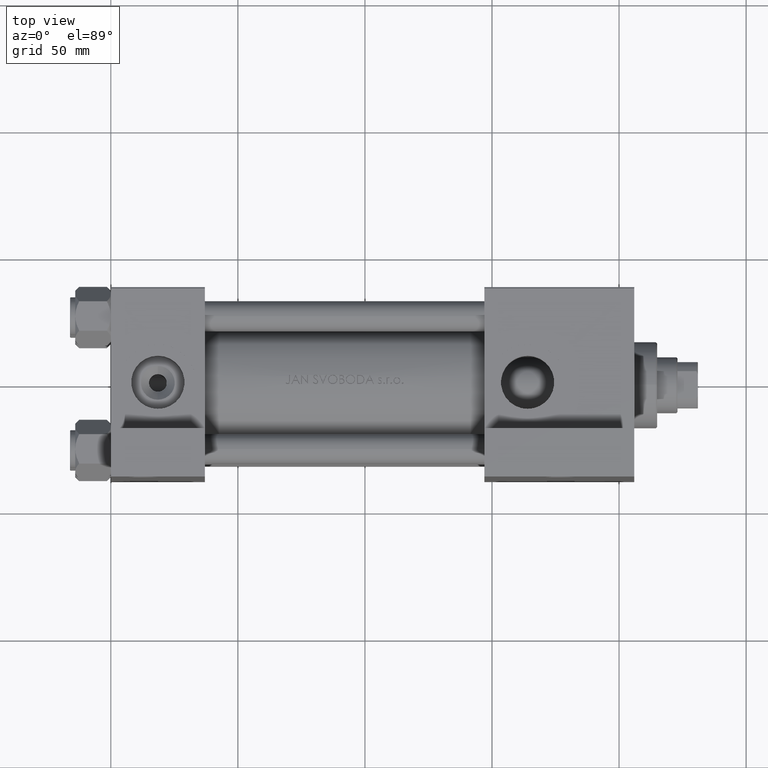
[diagram: clean part render]
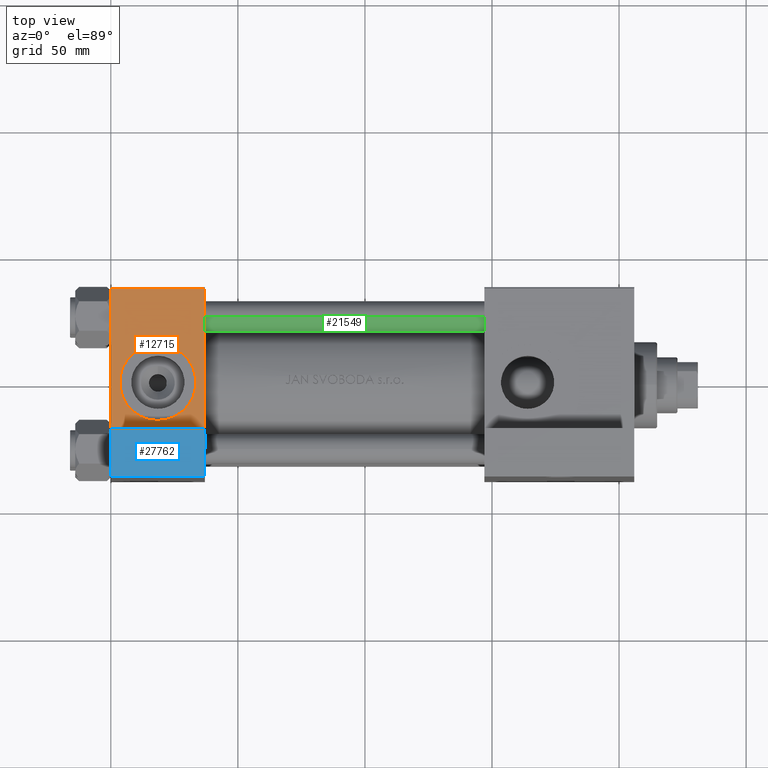
[diagram: same view with three faces highlighted in distinct colors, each labeled with its STEP entity id]
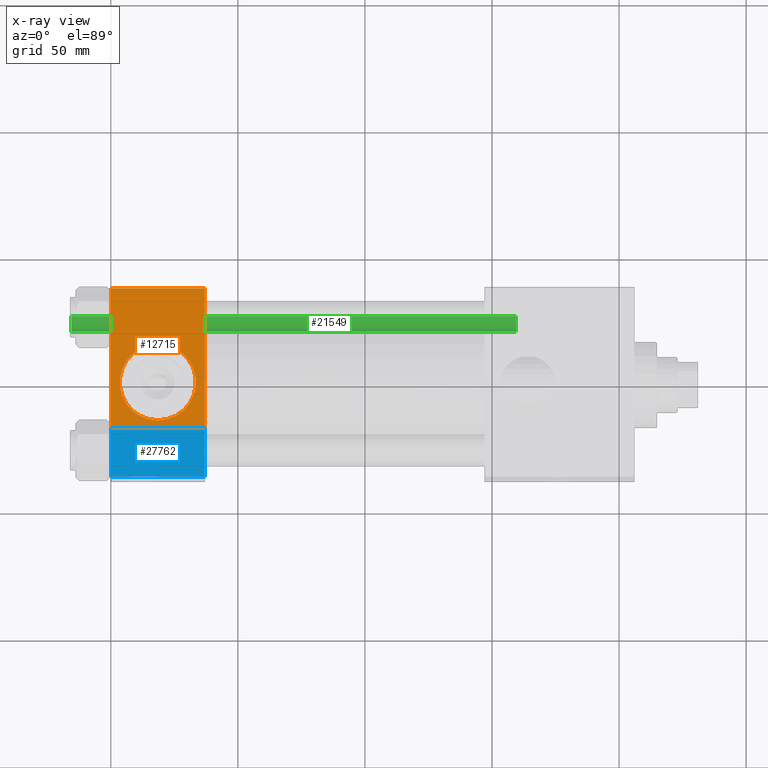
[diagram: x-ray of the same camera — body ghosted, the three highlighted faces saturated]
A machine part, top view with three faces highlighted in distinct colors.
The next image is the same camera in x-ray (body ghosted, the three faces saturated) — at least one of them is partly hidden behind the body in this view.
Their STEP definitions:

[orange] entity #12715 — the highlighted planar face has unit normal (0, 0, -1).
#802 = DIRECTION ( 'NONE',  ( 0.000000000000000000, -1.000000000000000000, -8.673617379884036705E-17 ) ) ;
#1227 = CARTESIAN_POINT ( 'NONE',  ( -7.145701223179000102E-16, -37.50000000000001421, -18.49999999999999645 ) ) ;
#2583 = VERTEX_POINT ( 'NONE', #48333 ) ;
#3276 = CARTESIAN_POINT ( 'NONE',  ( 37.00000000000000000, -37.50000000000000711, 37.49999999999999289 ) ) ;
#4734 = LINE ( 'NONE', #1227, #9616 ) ;
#4885 = DIRECTION ( 'NONE',  ( -0.000000000000000000, 1.000000000000000000, 9.251858538542971581E-17 ) ) ;
#6336 = DIRECTION ( 'NONE',  ( 0.000000000000000000, -9.251858538542971581E-17, 1.000000000000000000 ) ) ;
#6585 = VERTEX_POINT ( 'NONE', #27610 ) ;
#8632 = CARTESIAN_POINT ( 'NONE',  ( 0.000000000000000000, -37.50000000000000711, 37.49999999999999289 ) ) ;
#8696 = VECTOR ( 'NONE', #31800, 1000.000000000000000 ) ;
#8959 = ORIENTED_EDGE ( 'NONE', *, *, #23511, .F. ) ;
#9616 = VECTOR ( 'NONE', #16437, 1000.000000000000000 ) ;
#10438 = VERTEX_POINT ( 'NONE', #42087 ) ;
#10993 = DIRECTION ( 'NONE',  ( 0.000000000000000000, 9.251858538542971581E-17, -1.000000000000000000 ) ) ;
#11662 = AXIS2_PLACEMENT_3D ( 'NONE', #39010, #4885, #6336 ) ;
#12175 = DIRECTION ( 'NONE',  ( 0.000000000000000000, 0.000000000000000000, -1.000000000000000000 ) ) ;
#12715 = ADVANCED_FACE ( 'NONE', ( #19583, #34772 ), #27301, .F. ) ;
#14037 = VERTEX_POINT ( 'NONE', #17992 ) ;
#14540 = EDGE_CURVE ( 'NONE', #6585, #29397, #43410, .T. ) ;
#14780 = AXIS2_PLACEMENT_3D ( 'NONE', #46044, #23147, #12175 ) ;
#14929 = ORIENTED_EDGE ( 'NONE', *, *, #14540, .F. ) ;
#16010 = DIRECTION ( 'NONE',  ( 0.000000000000000000, 0.000000000000000000, -1.000000000000000000 ) ) ;
#16437 = DIRECTION ( 'NONE',  ( -1.000000000000000000, 0.000000000000000000, 0.000000000000000000 ) ) ;
#16475 = CARTESIAN_POINT ( 'NONE',  ( 18.50000000000000355, -37.50000000000000711, 14.99999999999999822 ) ) ;
#17992 = CARTESIAN_POINT ( 'NONE',  ( 37.00000000000000000, -37.50000000000000000, -18.50000000000000355 ) ) ;
#18114 = CARTESIAN_POINT ( 'NONE',  ( 37.00000000000000000, -37.50000000000000711, 36.99999999999999289 ) ) ;
#19583 = FACE_BOUND ( 'NONE', #29420, .T. ) ;
#19730 = VECTOR ( 'NONE', #25358, 1000.000000000000000 ) ;
#20757 = EDGE_CURVE ( 'NONE', #2583, #45940, #29804, .T. ) ;
#22205 = VECTOR ( 'NONE', #10993, 1000.000000000000000 ) ;
#23147 = DIRECTION ( 'NONE',  ( 0.000000000000000000, -1.000000000000000000, -8.673617379884036705E-17 ) ) ;
#23487 = CARTESIAN_POINT ( 'NONE',  ( 18.50000000000000000, -37.50000000000000711, -3.469446951953614978E-15 ) ) ;
#23511 = EDGE_CURVE ( 'NONE', #2583, #14037, #33674, .T. ) ;
#24362 = EDGE_CURVE ( 'NONE', #45940, #10438, #39281, .T. ) ;
#25358 = DIRECTION ( 'NONE',  ( -1.000000000000000000, 0.000000000000000000, 0.000000000000000000 ) ) ;
#26132 = EDGE_CURVE ( 'NONE', #29397, #6585, #27088, .T. ) ;
#27088 = CIRCLE ( 'NONE', #27880, 15.00000000000000178 ) ;
#27301 = PLANE ( 'NONE',  #11662 ) ;
#27610 = CARTESIAN_POINT ( 'NONE',  ( 18.50000000000000000, -37.50000000000000711, -15.00000000000000533 ) ) ;
#27880 = AXIS2_PLACEMENT_3D ( 'NONE', #23487, #802, #16010 ) ;
#29131 = ORIENTED_EDGE ( 'NONE', *, *, #26132, .F. ) ;
#29397 = VERTEX_POINT ( 'NONE', #16475 ) ;
#29420 = EDGE_LOOP ( 'NONE', ( #14929, #29131 ) ) ;
#29554 = ORIENTED_EDGE ( 'NONE', *, *, #20757, .T. ) ;
#29804 = LINE ( 'NONE', #18114, #19730 ) ;
#31477 = EDGE_CURVE ( 'NONE', #14037, #10438, #4734, .T. ) ;
#31800 = DIRECTION ( 'NONE',  ( 0.000000000000000000, 9.251858538542971581E-17, -1.000000000000000000 ) ) ;
#33674 = LINE ( 'NONE', #3276, #22205 ) ;
#34772 = FACE_OUTER_BOUND ( 'NONE', #44314, .T. ) ;
#39010 = CARTESIAN_POINT ( 'NONE',  ( 37.00000000000000000, -37.50000000000000711, 37.49999999999999289 ) ) ;
#39281 = LINE ( 'NONE', #8632, #8696 ) ;
#39501 = CARTESIAN_POINT ( 'NONE',  ( 0.000000000000000000, -37.50000000000000711, 36.99999999999999289 ) ) ;
#41502 = ORIENTED_EDGE ( 'NONE', *, *, #31477, .F. ) ;
#42087 = CARTESIAN_POINT ( 'NONE',  ( -7.145701223179004046E-16, -37.50000000000000711, -18.50000000000000355 ) ) ;
#43410 = CIRCLE ( 'NONE', #14780, 15.00000000000000178 ) ;
#44314 = EDGE_LOOP ( 'NONE', ( #41502, #8959, #29554, #48595 ) ) ;
#45940 = VERTEX_POINT ( 'NONE', #39501 ) ;
#46044 = CARTESIAN_POINT ( 'NONE',  ( 18.50000000000000000, -37.50000000000000711, -3.469446951953614978E-15 ) ) ;
#48333 = CARTESIAN_POINT ( 'NONE',  ( 37.00000000000000000, -37.50000000000000711, 36.99999999999999289 ) ) ;
#48595 = ORIENTED_EDGE ( 'NONE', *, *, #24362, .T. ) ;

[blue] entity #27762 — the highlighted planar face has unit normal (0, 0, 1).
#14 = EDGE_CURVE ( 'NONE', #20537, #11891, #7150, .T. ) ;
#710 = VECTOR ( 'NONE', #16675, 1000.000000000000000 ) ;
#1011 = ORIENTED_EDGE ( 'NONE', *, *, #14, .T. ) ;
#1655 = DIRECTION ( 'NONE',  ( 0.000000000000000000, -1.734723475976806848E-16, -1.000000000000000000 ) ) ;
#1950 = DIRECTION ( 'NONE',  ( 0.000000000000000000, -1.734723475976806848E-16, -1.000000000000000000 ) ) ;
#3961 = EDGE_CURVE ( 'NONE', #4612, #39151, #18151, .T. ) ;
#4460 = CARTESIAN_POINT ( 'NONE',  ( 3.977209754999747208E-16, -63.50000000000000000, -18.50000000000000355 ) ) ;
#4612 = VERTEX_POINT ( 'NONE', #8301 ) ;
#5256 = VECTOR ( 'NONE', #10664, 1000.000000000000000 ) ;
#7150 = LINE ( 'NONE', #18621, #26620 ) ;
#8301 = CARTESIAN_POINT ( 'NONE',  ( 37.00000000000000000, -63.50000000000000000, -18.50000000000000355 ) ) ;
#10664 = DIRECTION ( 'NONE',  ( 0.000000000000000000, -1.734723475976806848E-16, -1.000000000000000000 ) ) ;
#11891 = VERTEX_POINT ( 'NONE', #14773 ) ;
#12197 = VECTOR ( 'NONE', #25764, 1000.000000000000000 ) ;
#12686 = CARTESIAN_POINT ( 'NONE',  ( 3.977209754999747208E-16, -63.50000000000000000, -18.50000000000000355 ) ) ;
#14773 = CARTESIAN_POINT ( 'NONE',  ( 3.977209754999747208E-16, -63.50000000000000000, -37.49999999999999289 ) ) ;
#15929 = ORIENTED_EDGE ( 'NONE', *, *, #36342, .F. ) ;
#16675 = DIRECTION ( 'NONE',  ( 1.000000000000000000, 0.000000000000000000, 0.000000000000000000 ) ) ;
#17636 = CARTESIAN_POINT ( 'NONE',  ( 3.977209754999747208E-16, -63.49999999999998579, 26.72167621838007889 ) ) ;
#17910 = CARTESIAN_POINT ( 'NONE',  ( 37.00000000000000000, -63.49999999999998579, 26.72167621838007889 ) ) ;
#18151 = LINE ( 'NONE', #17910, #5256 ) ;
#18621 = CARTESIAN_POINT ( 'NONE',  ( 3.977209754999747208E-16, -63.49999999999998579, 26.72167621838007889 ) ) ;
#18775 = CARTESIAN_POINT ( 'NONE',  ( 3.977209754999747208E-16, -63.50000000000000000, -37.49999999999999289 ) ) ;
#20537 = VERTEX_POINT ( 'NONE', #4460 ) ;
#24284 = ORIENTED_EDGE ( 'NONE', *, *, #3961, .F. ) ;
#24774 = ORIENTED_EDGE ( 'NONE', *, *, #33256, .F. ) ;
#25764 = DIRECTION ( 'NONE',  ( -1.000000000000000000, -0.000000000000000000, -0.000000000000000000 ) ) ;
#26004 = LINE ( 'NONE', #18775, #12197 ) ;
#26620 = VECTOR ( 'NONE', #1655, 1000.000000000000000 ) ;
#27153 = LINE ( 'NONE', #12686, #710 ) ;
#27762 = ADVANCED_FACE ( 'NONE', ( #44032 ), #36095, .T. ) ;
#28606 = DIRECTION ( 'NONE',  ( 0.000000000000000000, -1.000000000000000000, 1.734723475976806848E-16 ) ) ;
#33256 = EDGE_CURVE ( 'NONE', #39151, #11891, #26004, .T. ) ;
#34189 = AXIS2_PLACEMENT_3D ( 'NONE', #17636, #28606, #1950 ) ;
#36095 = PLANE ( 'NONE',  #34189 ) ;
#36342 = EDGE_CURVE ( 'NONE', #20537, #4612, #27153, .T. ) ;
#36490 = CARTESIAN_POINT ( 'NONE',  ( 37.00000000000000000, -63.50000000000000000, -37.49999999999999289 ) ) ;
#39151 = VERTEX_POINT ( 'NONE', #36490 ) ;
#39917 = EDGE_LOOP ( 'NONE', ( #15929, #1011, #24774, #24284 ) ) ;
#44032 = FACE_OUTER_BOUND ( 'NONE', #39917, .T. ) ;

[green] entity #21549 — the highlighted cylindrical surface (edge-blend (fillet) strip) has radius 6 mm, axis along (-1, -0, -0).
#1456 = CYLINDRICAL_SURFACE ( 'NONE', #47592, 6.000000000000000888 ) ;
#1944 = VERTEX_POINT ( 'NONE', #18891 ) ;
#5208 = ORIENTED_EDGE ( 'NONE', *, *, #8810, .F. ) ;
#5214 = DIRECTION ( 'NONE',  ( -0.000000000000000000, -0.000000000000000000, 1.000000000000000000 ) ) ;
#5454 = DIRECTION ( 'NONE',  ( -1.000000000000000000, 0.000000000000000000, 0.000000000000000000 ) ) ;
#6054 = CARTESIAN_POINT ( 'NONE',  ( 6.000000000000000888, 7.347880794884120722E-16, 0.4999999999999449329 ) ) ;
#6081 = CIRCLE ( 'NONE', #33911, 6.000000000000000888 ) ;
#6698 = DIRECTION ( 'NONE',  ( 0.000000000000000000, 0.000000000000000000, -1.000000000000000000 ) ) ;
#8810 = EDGE_CURVE ( 'NONE', #25655, #23370, #21304, .T. ) ;
#8836 = LINE ( 'NONE', #39489, #43478 ) ;
#9084 = DIRECTION ( 'NONE',  ( -0.000000000000000000, -0.000000000000000000, -1.000000000000000000 ) ) ;
#10435 = DIRECTION ( 'NONE',  ( 1.000000000000000000, 0.000000000000000000, 0.000000000000000000 ) ) ;
#10853 = ORIENTED_EDGE ( 'NONE', *, *, #13363, .T. ) ;
#12925 = CARTESIAN_POINT ( 'NONE',  ( 0.000000000000000000, 0.000000000000000000, 176.0000000000000000 ) ) ;
#13363 = EDGE_CURVE ( 'NONE', #25655, #1944, #6081, .T. ) ;
#14418 = CARTESIAN_POINT ( 'NONE',  ( -6.000000000000000888, 0.000000000000000000, 0.4999999999999449329 ) ) ;
#16284 = VECTOR ( 'NONE', #29028, 1000.000000000000000 ) ;
#16918 = EDGE_CURVE ( 'NONE', #1944, #39365, #8836, .T. ) ;
#18891 = CARTESIAN_POINT ( 'NONE',  ( -6.000000000000000888, 0.000000000000000000, 175.5000000000000000 ) ) ;
#21304 = LINE ( 'NONE', #32517, #16284 ) ;
#21549 = ADVANCED_FACE ( 'NONE', ( #32839 ), #1456, .T. ) ;
#22397 = CARTESIAN_POINT ( 'NONE',  ( 0.000000000000000000, 0.000000000000000000, 175.5000000000000000 ) ) ;
#23370 = VERTEX_POINT ( 'NONE', #6054 ) ;
#23822 = CIRCLE ( 'NONE', #45269, 6.000000000000000888 ) ;
#23947 = EDGE_LOOP ( 'NONE', ( #5208, #10853, #40700, #45204 ) ) ;
#24077 = EDGE_CURVE ( 'NONE', #39365, #23370, #23822, .T. ) ;
#25655 = VERTEX_POINT ( 'NONE', #31751 ) ;
#28132 = DIRECTION ( 'NONE',  ( 1.000000000000000000, 0.000000000000000000, 0.000000000000000000 ) ) ;
#29028 = DIRECTION ( 'NONE',  ( -0.000000000000000000, -0.000000000000000000, -1.000000000000000000 ) ) ;
#31751 = CARTESIAN_POINT ( 'NONE',  ( 6.000000000000000888, 7.347880794884120722E-16, 175.5000000000000000 ) ) ;
#32517 = CARTESIAN_POINT ( 'NONE',  ( 6.000000000000000888, 7.347880794884120722E-16, 176.0000000000000000 ) ) ;
#32839 = FACE_OUTER_BOUND ( 'NONE', #23947, .T. ) ;
#33911 = AXIS2_PLACEMENT_3D ( 'NONE', #22397, #6698, #10435 ) ;
#35607 = DIRECTION ( 'NONE',  ( -0.000000000000000000, -0.000000000000000000, -1.000000000000000000 ) ) ;
#36100 = CARTESIAN_POINT ( 'NONE',  ( 0.000000000000000000, 0.000000000000000000, 0.4999999999999449329 ) ) ;
#39365 = VERTEX_POINT ( 'NONE', #14418 ) ;
#39489 = CARTESIAN_POINT ( 'NONE',  ( -6.000000000000000888, 0.000000000000000000, 176.0000000000000000 ) ) ;
#40700 = ORIENTED_EDGE ( 'NONE', *, *, #16918, .T. ) ;
#43478 = VECTOR ( 'NONE', #9084, 1000.000000000000000 ) ;
#45204 = ORIENTED_EDGE ( 'NONE', *, *, #24077, .T. ) ;
#45269 = AXIS2_PLACEMENT_3D ( 'NONE', #36100, #5214, #28132 ) ;
#47592 = AXIS2_PLACEMENT_3D ( 'NONE', #12925, #35607, #5454 ) ;